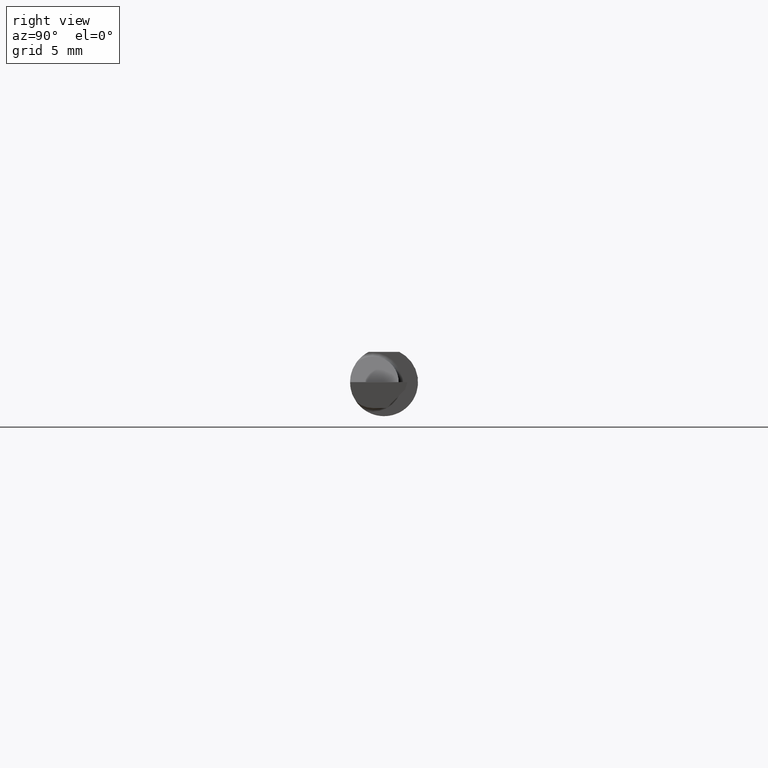
[diagram: clean part render]
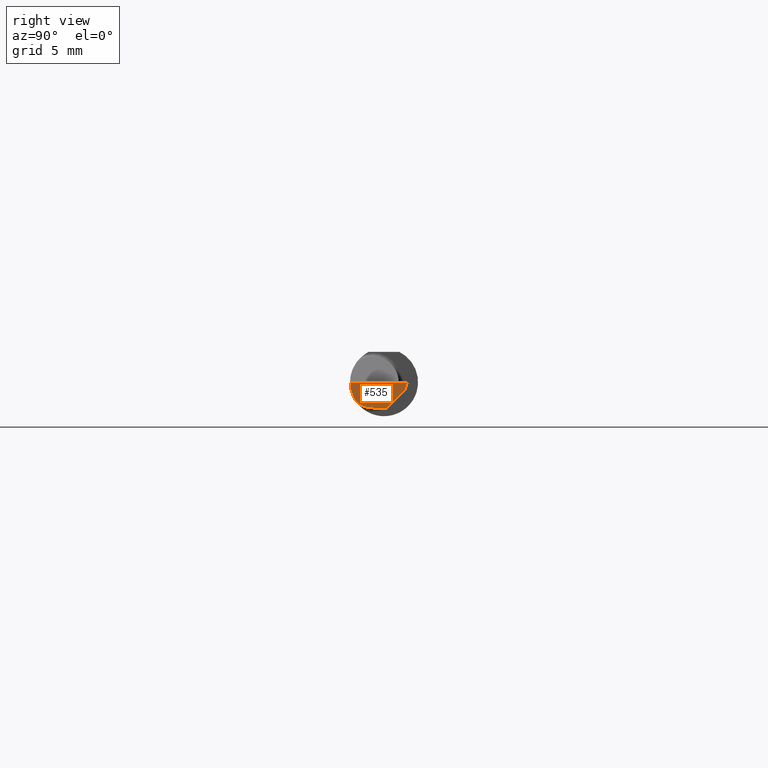
[diagram: same view with one face highlighted and labeled with its STEP entity id]
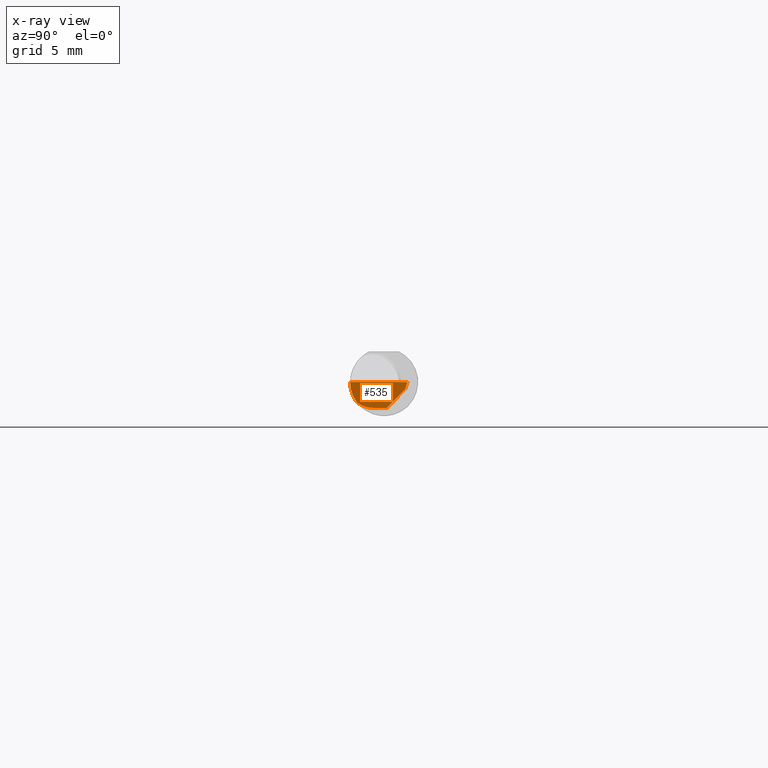
[diagram: x-ray of the same camera — body ghosted, the highlighted face saturated]
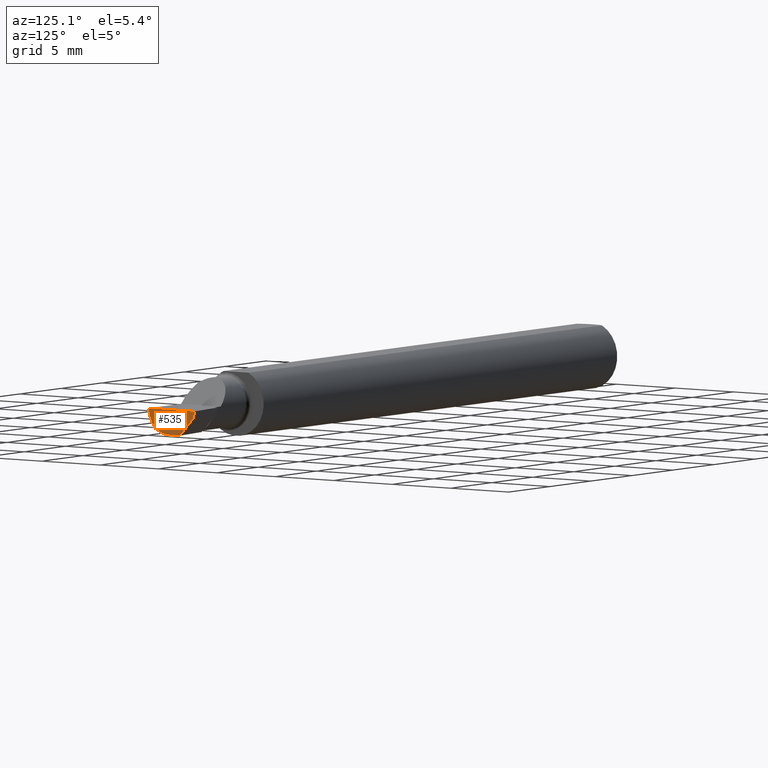
[diagram: same view with one face highlighted and labeled with its STEP entity id]
A machine part, right view. The second image highlights one B-rep face of the part: STEP entity #535.
The next image is the same camera in x-ray: the body ghosted, the highlighted face saturated — about 0% of this face is hidden behind the body in this view.
A second angle (auxiliary view) of the same face is appended — the face is thin or edge-on in the first view.
In plain terms, the highlighted planar face has unit normal (0.9922, -0.026, -0.1219).
Its self-contained STEP definition (entity closure, byte-faithful):
#17 = LINE ( 'NONE', #106, #243 ) ;
#23 = VERTEX_POINT ( 'NONE', #432 ) ;
#36 = CARTESIAN_POINT ( 'NONE',  ( 1.989797099917948398, 0.007796764149783504474, -0.07100000000000021572 ) ) ;
#46 = EDGE_CURVE ( 'NONE', #314, #616, #514, .T. ) ;
#55 = ORIENTED_EDGE ( 'NONE', *, *, #318, .T. ) ;
#56 = CARTESIAN_POINT ( 'NONE',  ( 1.995862624392068074, -0.09360000000000009979, -6.605666309584466665E-17 ) ) ;
#59 = DIRECTION ( 'NONE',  ( 0.02617694830786939167, 0.9996573249755573709, -4.246274422243602914E-17 ) ) ;
#75 = CARTESIAN_POINT ( 'NONE',  ( 1.989625015145392917, -0.07608366013071815592, -0.05451822320209428335 ) ) ;
#86 = CARTESIAN_POINT ( 'NONE',  ( 1.995862624392068074, -0.09360000000000009979, -6.605666309584466665E-17 ) ) ;
#104 = CARTESIAN_POINT ( 'NONE',  ( 1.993440754331651465, -0.09359999999999997489, -0.01971778966533913047 ) ) ;
#106 = CARTESIAN_POINT ( 'NONE',  ( 1.988799325593724632, -0.03030670001847553252, -0.07100000000000021572 ) ) ;
#124 = CARTESIAN_POINT ( 'NONE',  ( 2.075578470192265268, -0.1475581462076027695, 0.6605145482336969298 ) ) ;
#140 = CARTESIAN_POINT ( 'NONE',  ( 1.989539383090032976, 0.03890407463132242172, -0.07973011203839537597 ) ) ;
#151 = CARTESIAN_POINT ( 'NONE',  ( 1.997375993425186236, 0.05800444260848391931, -0.02000000000000000042 ) ) ;
#157 = EDGE_CURVE ( 'NONE', #23, #261, #493, .T. ) ;
#164 = EDGE_CURVE ( 'NONE', #314, #236, #17, .T. ) ;
#165 = ORIENTED_EDGE ( 'NONE', *, *, #442, .T. ) ;
#166 = PLANE ( 'NONE',  #270 ) ;
#172 = ORIENTED_EDGE ( 'NONE', *, *, #157, .T. ) ;
#176 = CARTESIAN_POINT ( 'NONE',  ( 1.988791645263412011, -0.03060000000000022424, -0.07100000000000021572 ) ) ;
#236 = VERTEX_POINT ( 'NONE', #36 ) ;
#237 =( BOUNDED_CURVE ( )  B_SPLINE_CURVE ( 3, ( #56, #104, #543, #312 ),
 .UNSPECIFIED., .F., .T. ) 
 B_SPLINE_CURVE_WITH_KNOTS ( ( 4, 4 ),
 ( 4.922438424664829171, 5.544189768309972344 ),
 .UNSPECIFIED. ) 
 CURVE ( )  GEOMETRIC_REPRESENTATION_ITEM ( )  RATIONAL_B_SPLINE_CURVE ( ( 1.000000000000000000, 0.9680440490283177546, 0.9680440490283177546, 1.000000000000000000 ) ) 
 REPRESENTATION_ITEM ( '' )  );
#243 = VECTOR ( 'NONE', #59, 39.37007874015748143 ) ;
#256 = FACE_OUTER_BOUND ( 'NONE', #377, .T. ) ;
#257 = CARTESIAN_POINT ( 'NONE',  ( 1.991772787678609324, -0.2497845628634190740, -6.377686106282058433E-17 ) ) ;
#260 = VECTOR ( 'NONE', #335, 39.37007874015748854 ) ;
#261 = VERTEX_POINT ( 'NONE', #86 ) ;
#270 = AXIS2_PLACEMENT_3D ( 'NONE', #124, #591, #457 ) ;
#271 = LINE ( 'NONE', #468, #489 ) ;
#299 = LINE ( 'NONE', #140, #260 ) ;
#312 = CARTESIAN_POINT ( 'NONE',  ( 1.989625015145392917, -0.07608366013071815592, -0.05451822320209428335 ) ) ;
#314 = VERTEX_POINT ( 'NONE', #319 ) ;
#318 = EDGE_CURVE ( 'NONE', #236, #411, #271, .T. ) ;
#319 = CARTESIAN_POINT ( 'NONE',  ( 1.988791645263412011, -0.03060000000000022424, -0.07100000000000021572 ) ) ;
#323 = CARTESIAN_POINT ( 'NONE',  ( 1.988641161029047311, -0.06318680184005825984, -0.06527786071030773629 ) ) ;
#335 = DIRECTION ( 'NONE',  ( 0.1240019227989323097, 0.3022330132596648400, 0.9451342385281314984 ) ) ;
#370 = CARTESIAN_POINT ( 'NONE',  ( 1.988351831874612285, -0.04739579569646894946, -0.07100000000000021572 ) ) ;
#377 = EDGE_LOOP ( 'NONE', ( #165, #491, #595, #55, #473, #172 ) ) ;
#411 = VERTEX_POINT ( 'NONE', #151 ) ;
#432 = CARTESIAN_POINT ( 'NONE',  ( 2.000000000000004441, 0.06440000000001339098, 4.265097680108330883E-14 ) ) ;
#435 = DIRECTION ( 'NONE',  ( 0.1053106618241778786, 0.6976485211320171409, 0.7086580314005218595 ) ) ;
#440 = EDGE_CURVE ( 'NONE', #411, #23, #299, .T. ) ;
#442 = EDGE_CURVE ( 'NONE', #261, #616, #237, .T. ) ;
#453 = DIRECTION ( 'NONE',  ( -0.02617694830786939167, -0.9996573249755573709, 1.459184416195897376E-17 ) ) ;
#457 = DIRECTION ( 'NONE',  ( -0.1219104985252815604, 0.000000000000000000, -0.9925410975618679243 ) ) ;
#468 = CARTESIAN_POINT ( 'NONE',  ( 1.987425757778911173, -0.007912598109847429617, -0.08695726988054665318 ) ) ;
#473 = ORIENTED_EDGE ( 'NONE', *, *, #440, .T. ) ;
#489 = VECTOR ( 'NONE', #435, 39.37007874015748854 ) ;
#491 = ORIENTED_EDGE ( 'NONE', *, *, #46, .F. ) ;
#493 = LINE ( 'NONE', #257, #590 ) ;
#499 = CARTESIAN_POINT ( 'NONE',  ( 1.989625015145392917, -0.07608366013071815592, -0.05451822320209428335 ) ) ;
#514 =( BOUNDED_CURVE ( )  B_SPLINE_CURVE ( 3, ( #176, #370, #323, #75 ),
 .UNSPECIFIED., .F., .T. ) 
 B_SPLINE_CURVE_WITH_KNOTS ( ( 4, 4 ),
 ( 6.073135862899447623, 6.768434696801358896 ),
 .UNSPECIFIED. ) 
 CURVE ( )  GEOMETRIC_REPRESENTATION_ITEM ( )  RATIONAL_B_SPLINE_CURVE ( ( 1.000000000000000000, 0.9601174178332941844, 0.9601174178332941844, 1.000000000000000000 ) ) 
 REPRESENTATION_ITEM ( '' )  );
#535 = ADVANCED_FACE ( 'NONE', ( #256 ), #166, .T. ) ;
#543 = CARTESIAN_POINT ( 'NONE',  ( 1.991292915001083852, -0.08756847698997992369, -0.03849042825095493753 ) ) ;
#590 = VECTOR ( 'NONE', #453, 39.37007874015748143 ) ;
#591 = DIRECTION ( 'NONE',  ( 0.9922060308645480609, -0.02598182930468958748, -0.1218693434051461438 ) ) ;
#595 = ORIENTED_EDGE ( 'NONE', *, *, #164, .T. ) ;
#616 = VERTEX_POINT ( 'NONE', #499 ) ;